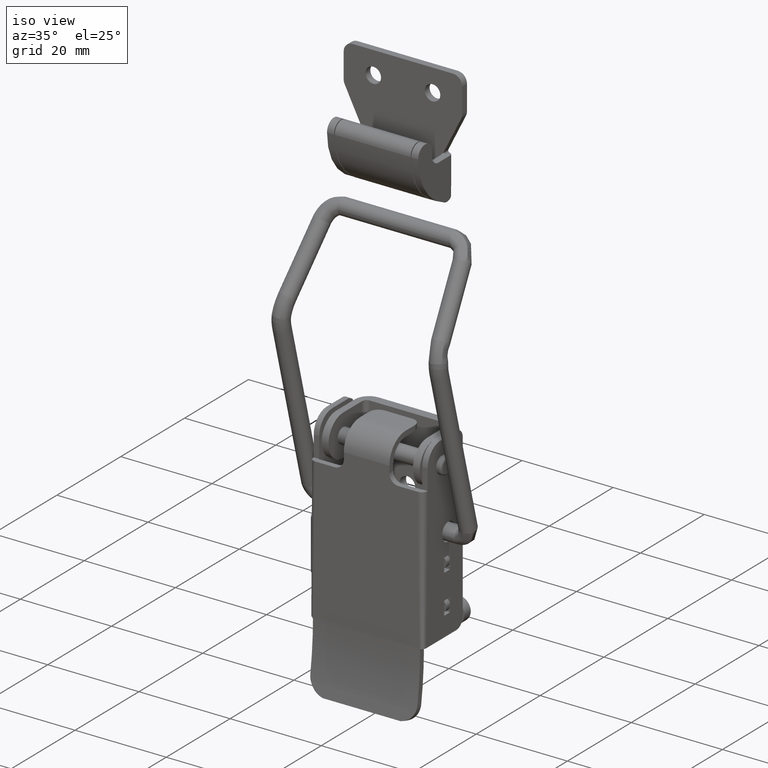
[diagram: clean part render]
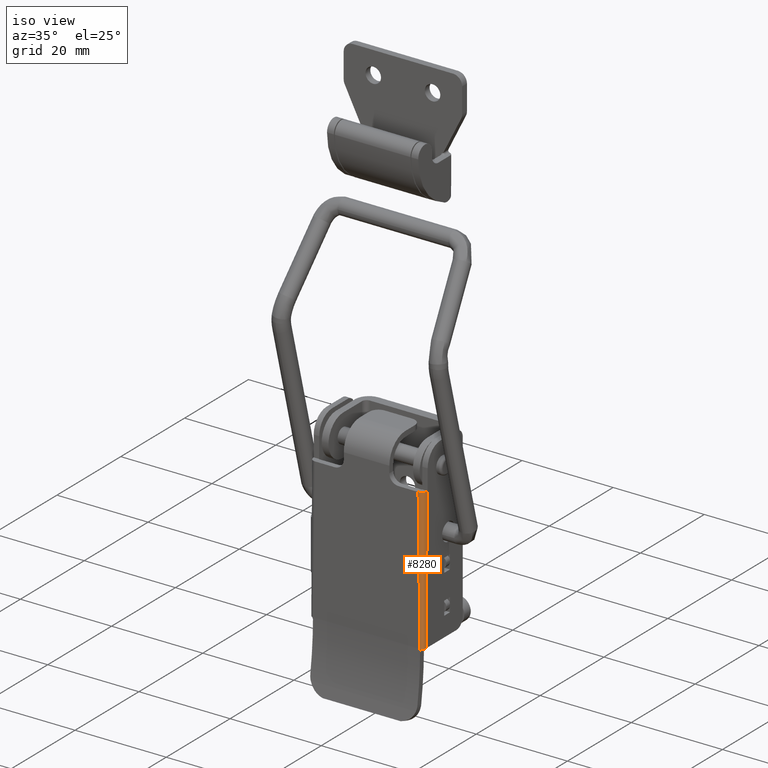
[diagram: same view with one face highlighted and labeled with its STEP entity id]
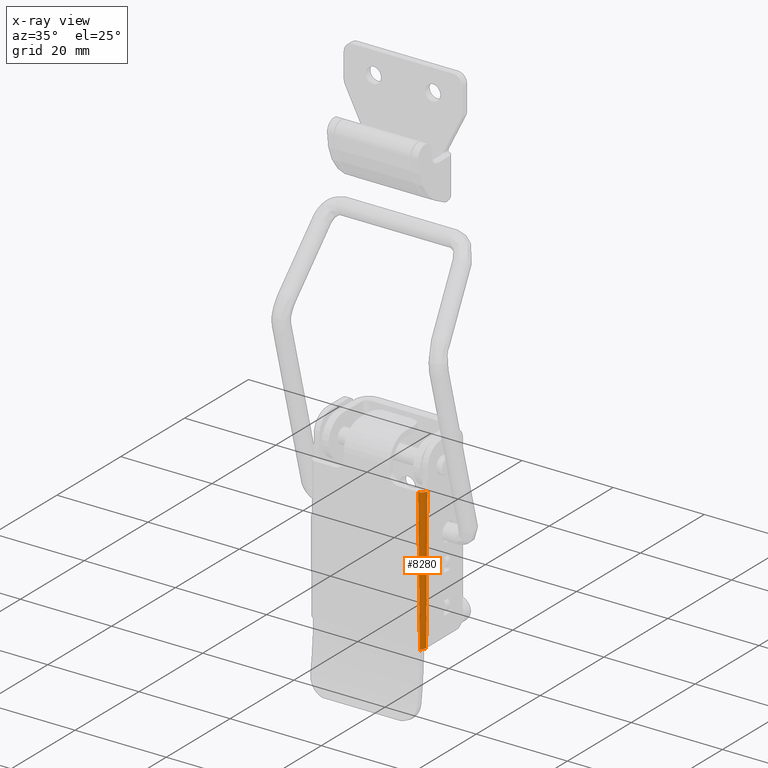
[diagram: x-ray of the same camera — body ghosted, the highlighted face saturated]
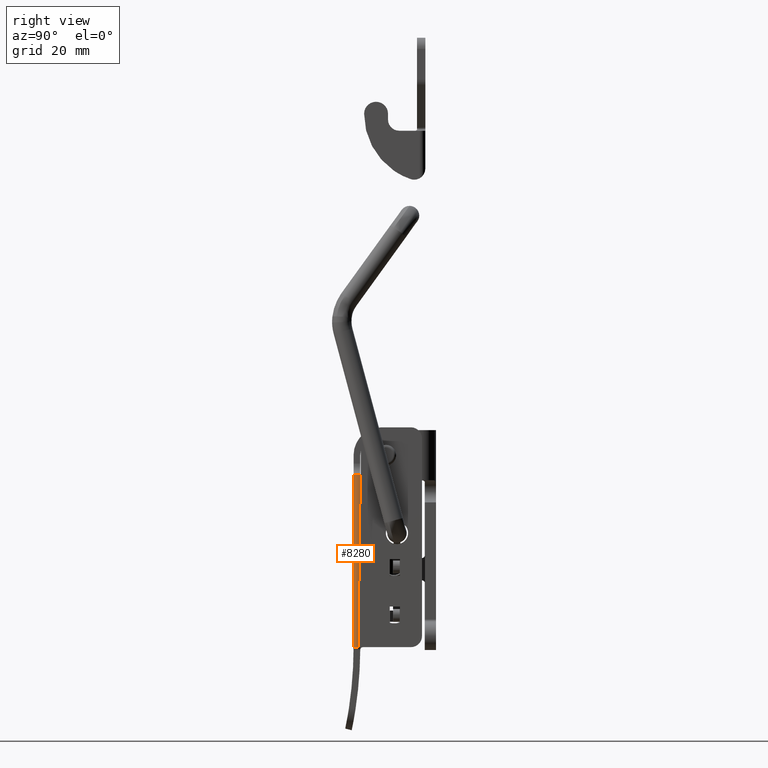
[diagram: same view with one face highlighted and labeled with its STEP entity id]
A machine part, iso view. The second image highlights one B-rep face of the part: STEP entity #8280.
The next image is the same camera in x-ray: the body ghosted, the highlighted face saturated — about 0% of this face is hidden behind the body in this view.
A second angle (right view) of the same face is appended — the face is thin or edge-on in the first view.
In plain terms, the highlighted face is a freeform B-spline surface patch.
Its self-contained STEP definition (entity closure, byte-faithful):
#133 = CARTESIAN_POINT ( 'NONE',  ( 12.50000000001454100, -4.599999999999919700, -3.500000000000000000 ) ) ;
#923 = CARTESIAN_POINT ( 'NONE',  ( 12.50000000001453900, -5.799999999999910100, 37.83333333333330700 ) ) ;
#978 = CARTESIAN_POINT ( 'NONE',  ( 12.50000000001454100, -4.599999999999919700, -13.83333333333332000 ) ) ;
#1420 = CARTESIAN_POINT ( 'NONE',  ( 11.75000000001460000, -5.799217985566720300, -34.50000000000000000 ) ) ;
#1940 = CARTESIAN_POINT ( 'NONE',  ( 11.30000000001454000, -5.799999999999999800, -3.500000000000000000 ) ) ;
#1984 = CARTESIAN_POINT ( 'NONE',  ( 11.75000000001490200, -5.798435971133459400, -35.00000000000000000 ) ) ;
#2326 = CARTESIAN_POINT ( 'NONE',  ( 12.50000000001453900, -5.799999999999910100, -3.499999999999995600 ) ) ;
#2386 = CARTESIAN_POINT ( 'NONE',  ( 12.50000000001454100, -4.999999999999920100, -34.50000000000000000 ) ) ;
#2893 = CARTESIAN_POINT ( 'NONE',  ( 11.75000000001490000, -5.798435971133459400, -35.00000000000000000 ) ) ;
#3328 = CARTESIAN_POINT ( 'NONE',  ( 11.70000000001454100, -5.799999999999919900, -24.16666666666663600 ) ) ;
#3375 = CARTESIAN_POINT ( 'NONE',  ( 11.75000000001507900, -5.798435971133451400, -34.83333333333335000 ) ) ;
#3556 = CARTESIAN_POINT ( 'NONE',  ( 12.50000000001454100, -4.599999999999919700, -3.500000000000000000 ) ) ;
#3576 = CARTESIAN_POINT ( 'NONE',  ( 11.86390454469135100, -5.784775405661255500, -34.67510603385952100 ) ) ;
#3655 = CARTESIAN_POINT ( 'NONE',  ( 11.30000000001454000, -5.799999999999919900, 17.16666666666665000 ) ) ;
#3705 = CARTESIAN_POINT ( 'NONE',  ( 12.50000000001453900, -5.799999999999910100, -24.16666666666665000 ) ) ;
#3731 = ORIENTED_EDGE ( 'NONE', *, *, #4683, .T. ) ;
#3771 = CARTESIAN_POINT ( 'NONE',  ( 12.50000000001454100, -4.999999999999920100, -75.83333333333330000 ) ) ;
#4232 =( BOUNDED_CURVE ( )  B_SPLINE_CURVE ( 3, ( #1984, #3375, #15915, #7559 ),
 .UNSPECIFIED., .F., .F. ) 
 B_SPLINE_CURVE_WITH_KNOTS ( ( 4, 4 ),
 ( 0.0000000000000000000, 0.0005000000000000210400 ),
 .UNSPECIFIED. ) 
 CURVE ( )  GEOMETRIC_REPRESENTATION_ITEM ( )  RATIONAL_B_SPLINE_CURVE ( ( 0.9755350013852317500, 0.9755350013852318600, 0.9755350013852319700, 0.9755350013852320800 ) ) 
 REPRESENTATION_ITEM ( '' )  );
#4244 = ORIENTED_EDGE ( 'NONE', *, *, #6275, .T. ) ;
#4312 = CARTESIAN_POINT ( 'NONE',  ( 12.50000000001454100, -4.999999999999919200, -24.16666666666665000 ) ) ;
#4396 = CARTESIAN_POINT ( 'NONE',  ( 11.75000000001460000, -5.799217985566720300, -34.50000000000000000 ) ) ;
#4408 = VERTEX_POINT ( 'NONE', #10064 ) ;
#4683 = EDGE_CURVE ( 'NONE', #14859, #6576, #10599, .T. ) ;
#4949 = CARTESIAN_POINT ( 'NONE',  ( 11.30000000001454000, -5.799999999999999800, -3.500000000000000000 ) ) ;
#4971 = CARTESIAN_POINT ( 'NONE',  ( 12.02393558462862100, -5.734530884425182300, -34.54969228621461500 ) ) ;
#5039 = CARTESIAN_POINT ( 'NONE',  ( 11.30000000001454000, -5.799999999999919900, -13.83333333333332000 ) ) ;
#5092 = CARTESIAN_POINT ( 'NONE',  ( 12.50000000001453900, -5.799999999999910100, -55.16666666666660000 ) ) ;
#5372 = CARTESIAN_POINT ( 'NONE',  ( 12.25000000001459800, -5.580947501930991100, -34.50000000000000000 ) ) ;
#5688 = CARTESIAN_POINT ( 'NONE',  ( 12.50000000001454100, -4.599999999999919700, -3.500000000000000000 ) ) ;
#5782 = CARTESIAN_POINT ( 'NONE',  ( 11.73333333334836200, -5.799999999999805300, -34.49999999999976600 ) ) ;
#6253 = CARTESIAN_POINT ( 'NONE',  ( 11.30000000001454000, -5.799999999999919900, 37.83333333333335000 ) ) ;
#6275 = EDGE_CURVE ( 'NONE', #10779, #11145, #15294, .T. ) ;
#6359 = CARTESIAN_POINT ( 'NONE',  ( 12.19884695432337400, -5.629375587148087900, -34.50000000000000000 ) ) ;
#6432 = CARTESIAN_POINT ( 'NONE',  ( 11.70000000001454100, -5.799999999999919900, -34.50000000000000000 ) ) ;
#6487 = CARTESIAN_POINT ( 'NONE',  ( 12.50000000001453900, -5.799999999999910100, -96.49999999999987200 ) ) ;
#6502 = CARTESIAN_POINT ( 'NONE',  ( 12.50000000001454100, -4.999999999999889900, -34.50000000000000000 ) ) ;
#6576 = VERTEX_POINT ( 'NONE', #16057 ) ;
#6613 = EDGE_CURVE ( 'NONE', #11145, #13084, #8239, .T. ) ;
#6704 = CARTESIAN_POINT ( 'NONE',  ( 12.50000000001454100, -5.344265186329431900, -34.50000000000000000 ) ) ;
#7191 = CARTESIAN_POINT ( 'NONE',  ( 11.70000000001459900, -5.799999999999860400, -34.50000000000000000 ) ) ;
#7520 = ORIENTED_EDGE ( 'NONE', *, *, #13039, .T. ) ;
#7559 = CARTESIAN_POINT ( 'NONE',  ( 11.75000000001460000, -5.799217985566719400, -34.50000000000000000 ) ) ;
#7598 = EDGE_CURVE ( 'NONE', #14859, #10055, #4232, .T. ) ;
#7656 = EDGE_LOOP ( 'NONE', ( #15961, #16170, #3731, #8144, #4244, #9449, #7520 ) ) ;
#7744 = CARTESIAN_POINT ( 'NONE',  ( 11.30000000001454000, -5.799999999999999800, -3.500000000000000000 ) ) ;
#7834 = CARTESIAN_POINT ( 'NONE',  ( 11.70000000001454100, -5.799999999999919900, -75.83333333333330000 ) ) ;
#7894 = CARTESIAN_POINT ( 'NONE',  ( 12.50000000001454100, -4.599999999999919700, 37.83333333333335000 ) ) ;
#8144 = ORIENTED_EDGE ( 'NONE', *, *, #16467, .T. ) ;
#8177 = CARTESIAN_POINT ( 'NONE',  ( 12.50000000001454100, -4.999999999999889900, -34.50000000000000000 ) ) ;
#8239 =( BOUNDED_CURVE ( )  B_SPLINE_CURVE ( 2, ( #3556, #11928, #4949 ),
 .UNSPECIFIED., .F., .F. ) 
 B_SPLINE_CURVE_WITH_KNOTS ( ( 3, 3 ),
 ( 0.0000000000000000000, 0.001874245461911595900 ),
 .UNSPECIFIED. ) 
 CURVE ( )  GEOMETRIC_REPRESENTATION_ITEM ( )  RATIONAL_B_SPLINE_CURVE ( ( 1.000000000000000000, 0.7071067811865480200, 1.000000000000000000 ) ) 
 REPRESENTATION_ITEM ( '' )  );
#8280 = ADVANCED_FACE ( 'NONE', ( #11476 ), #8677, .F. ) ;
#8441 = CARTESIAN_POINT ( 'NONE',  ( 12.50000000001454100, -4.999999999999889900, -34.50000000000000000 ) ) ;
#8677 =( BOUNDED_SURFACE ( )  B_SPLINE_SURFACE ( 2, 3, ( 
 ( #12014, #6253, #3655, #13413, #5039, #14807, #6432, #16197, #7834, #17602 ),
 ( #9256, #923, #10664, #2326, #12075, #3705, #13470, #5092, #14866, #6487 ),
 ( #16259, #7894, #17661, #9316, #978, #10724, #2386, #12130, #3771, #13528 ) ),
 .UNSPECIFIED., .F., .F., .F. ) 
 B_SPLINE_SURFACE_WITH_KNOTS ( ( 3, 3 ),
 ( 4, 3, 3, 4 ),
 ( 0.0000000000000000000, 1.000000000000000000 ),
 ( -0.09299999999999999900, -0.03100000000000000000, 0.0000000000000000000, 0.06200000000000000000 ),
 .UNSPECIFIED. ) 
 GEOMETRIC_REPRESENTATION_ITEM ( )  RATIONAL_B_SPLINE_SURFACE ( (
 ( 1.000000000000000000, 1.000000000000000000, 1.000000000000000000, 1.000000000000000000, 1.000000000000000000, 1.000000000000000000, 1.000000000000000000, 1.000000000000000000, 1.000000000000000000, 1.000000000000000000),
 ( 0.7071067811865480200, 0.7071067811865480200, 0.7071067811865480200, 0.7071067811865480200, 0.7071067811865480200, 0.7071067811865480200, 0.7071067811865480200, 0.7071067811865480200, 0.7071067811865480200, 0.7071067811865480200),
 ( 1.000000000000000000, 1.000000000000000000, 1.000000000000000000, 1.000000000000000000, 1.000000000000000000, 1.000000000000000000, 1.000000000000000000, 1.000000000000000000, 1.000000000000000000, 1.000000000000000000) ) ) 
 REPRESENTATION_ITEM ( '' )  SURFACE ( )  );
#9071 = CARTESIAN_POINT ( 'NONE',  ( 11.76494851931874800, -5.797870191175555900, -34.86008184415017300 ) ) ;
#9114 = B_SPLINE_CURVE_WITH_KNOTS ( 'NONE', 3,
 ( #1940, #12952, #3328, #13072 ),
 .UNSPECIFIED., .F., .F.,
 ( 4, 4 ),
 ( -0.03100000000000000000, -4.857225732735059900E-017 ),
 .UNSPECIFIED. ) ;
#9256 = CARTESIAN_POINT ( 'NONE',  ( 12.50000000001453900, -5.799999999999910100, 58.49999999999999300 ) ) ;
#9316 = CARTESIAN_POINT ( 'NONE',  ( 12.50000000001454100, -4.599999999999919700, -3.500000000000000000 ) ) ;
#9449 = ORIENTED_EDGE ( 'NONE', *, *, #6613, .T. ) ;
#10055 = VERTEX_POINT ( 'NONE', #1420 ) ;
#10064 = CARTESIAN_POINT ( 'NONE',  ( 11.70000000001459900, -5.799999999999860400, -34.50000000000000000 ) ) ;
#10409 = CARTESIAN_POINT ( 'NONE',  ( 11.75000000001490200, -5.798435971133458500, -34.92949097679945000 ) ) ;
#10528 = CARTESIAN_POINT ( 'NONE',  ( 11.75000000001490000, -5.798435971133459400, -35.00000000000000000 ) ) ;
#10599 = B_SPLINE_CURVE_WITH_KNOTS ( 'NONE', 3,
 ( #10528, #10409, #9071, #11951, #3576, #13347, #4971, #14736, #6359, #16129 ),
 .UNSPECIFIED., .F., .F.,
 ( 4, 2, 2, 2, 4 ),
 ( 0.0000000000000000000, 0.0002085608126500519800, 0.0004171216253001039700, 0.0006256824379501559800, 0.0008342432506002079300 ),
 .UNSPECIFIED. ) ;
#10664 = CARTESIAN_POINT ( 'NONE',  ( 12.50000000001453900, -5.799999999999910100, 17.16666666666664300 ) ) ;
#10724 = CARTESIAN_POINT ( 'NONE',  ( 12.50000000001454100, -4.999999999999920100, -24.16666666666665400 ) ) ;
#10779 = VERTEX_POINT ( 'NONE', #6502 ) ;
#11136 =( BOUNDED_CURVE ( )  B_SPLINE_CURVE ( 2, ( #5372, #6704, #8177 ),
 .UNSPECIFIED., .F., .F. ) 
 B_SPLINE_CURVE_WITH_KNOTS ( ( 3, 3 ),
 ( 0.0005536357561379740900, 0.001199952744218392000 ),
 .UNSPECIFIED. ) 
 CURVE ( )  GEOMETRIC_REPRESENTATION_ITEM ( )  RATIONAL_B_SPLINE_CURVE ( ( 0.8537131161653402900, 0.8487169385398927200, 1.000000000000000000 ) ) 
 REPRESENTATION_ITEM ( '' )  );
#11145 = VERTEX_POINT ( 'NONE', #133 ) ;
#11476 = FACE_OUTER_BOUND ( 'NONE', #7656, .T. ) ;
#11928 = CARTESIAN_POINT ( 'NONE',  ( 12.50000000001453900, -5.799999999999910100, -3.499999999999998700 ) ) ;
#11951 = CARTESIAN_POINT ( 'NONE',  ( 11.82166055843622500, -5.791210376986321700, -34.73283459795477800 ) ) ;
#12014 = CARTESIAN_POINT ( 'NONE',  ( 11.30000000001454000, -5.799999999999919900, 58.50000000000000000 ) ) ;
#12072 = EDGE_CURVE ( 'NONE', #10055, #4408, #13147, .T. ) ;
#12075 = CARTESIAN_POINT ( 'NONE',  ( 12.50000000001453900, -5.799999999999910100, -13.83333333333332500 ) ) ;
#12130 = CARTESIAN_POINT ( 'NONE',  ( 12.50000000001454100, -4.999999999999920100, -55.16666666666670000 ) ) ;
#12952 = CARTESIAN_POINT ( 'NONE',  ( 11.30000000001454000, -5.799999999999919900, -13.83333333333330400 ) ) ;
#13039 = EDGE_CURVE ( 'NONE', #13084, #4408, #9114, .T. ) ;
#13072 = CARTESIAN_POINT ( 'NONE',  ( 11.70000000001459900, -5.799999999999860400, -34.50000000000000000 ) ) ;
#13084 = VERTEX_POINT ( 'NONE', #7744 ) ;
#13147 = B_SPLINE_CURVE_WITH_KNOTS ( 'NONE', 3,
 ( #4396, #5782, #15567, #7191 ),
 .UNSPECIFIED., .F., .F.,
 ( 4, 4 ),
 ( 0.0000000000000000000, 1.000000000000000000 ),
 .UNSPECIFIED. ) ;
#13347 = CARTESIAN_POINT ( 'NONE',  ( 11.96471545631560400, -5.756744913621374400, -34.58378068403519700 ) ) ;
#13413 = CARTESIAN_POINT ( 'NONE',  ( 11.30000000001454000, -5.799999999999919900, -3.500000000000000000 ) ) ;
#13470 = CARTESIAN_POINT ( 'NONE',  ( 12.50000000001453900, -5.799999999999910100, -34.49999999999999300 ) ) ;
#13528 = CARTESIAN_POINT ( 'NONE',  ( 12.50000000001454100, -4.999999999999920100, -96.50000000000000000 ) ) ;
#14073 = CARTESIAN_POINT ( 'NONE',  ( 12.50000000001454100, -4.599999999999919700, -13.83333333333331600 ) ) ;
#14736 = CARTESIAN_POINT ( 'NONE',  ( 12.14136226481075000, -5.670573809783586100, -34.50798374062617300 ) ) ;
#14807 = CARTESIAN_POINT ( 'NONE',  ( 11.70000000001454100, -5.799999999999919900, -24.16666666666665400 ) ) ;
#14859 = VERTEX_POINT ( 'NONE', #2893 ) ;
#14866 = CARTESIAN_POINT ( 'NONE',  ( 12.50000000001453900, -5.799999999999910100, -75.83333333333334300 ) ) ;
#15294 = B_SPLINE_CURVE_WITH_KNOTS ( 'NONE', 3,
 ( #8441, #4312, #14073, #5688 ),
 .UNSPECIFIED., .F., .F.,
 ( 4, 4 ),
 ( -0.03099999999999994400, -4.510281037539698400E-017 ),
 .UNSPECIFIED. ) ;
#15567 = CARTESIAN_POINT ( 'NONE',  ( 11.71666666668169700, -5.799999999999805300, -34.49999999999976600 ) ) ;
#15915 = CARTESIAN_POINT ( 'NONE',  ( 11.75000000001507900, -5.798435971133451400, -34.66666666666667900 ) ) ;
#15961 = ORIENTED_EDGE ( 'NONE', *, *, #12072, .F. ) ;
#16057 = CARTESIAN_POINT ( 'NONE',  ( 12.25000000001460000, -5.580947501930990200, -34.50000000000000000 ) ) ;
#16129 = CARTESIAN_POINT ( 'NONE',  ( 12.25000000001460000, -5.580947501930990200, -34.50000000000000000 ) ) ;
#16170 = ORIENTED_EDGE ( 'NONE', *, *, #7598, .F. ) ;
#16197 = CARTESIAN_POINT ( 'NONE',  ( 11.70000000001454100, -5.799999999999919900, -55.16666666666670000 ) ) ;
#16259 = CARTESIAN_POINT ( 'NONE',  ( 12.50000000001454100, -4.599999999999919700, 58.50000000000000000 ) ) ;
#16467 = EDGE_CURVE ( 'NONE', #6576, #10779, #11136, .T. ) ;
#17602 = CARTESIAN_POINT ( 'NONE',  ( 11.70000000001454100, -5.799999999999919900, -96.50000000000000000 ) ) ;
#17661 = CARTESIAN_POINT ( 'NONE',  ( 12.50000000001454100, -4.599999999999919700, 17.16666666666665000 ) ) ;